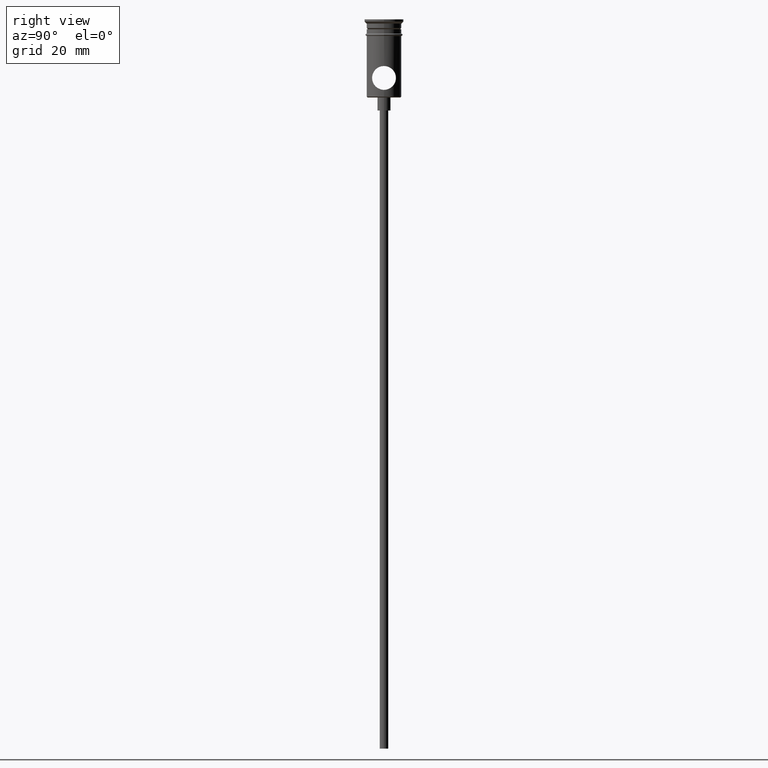
[diagram: clean part render]
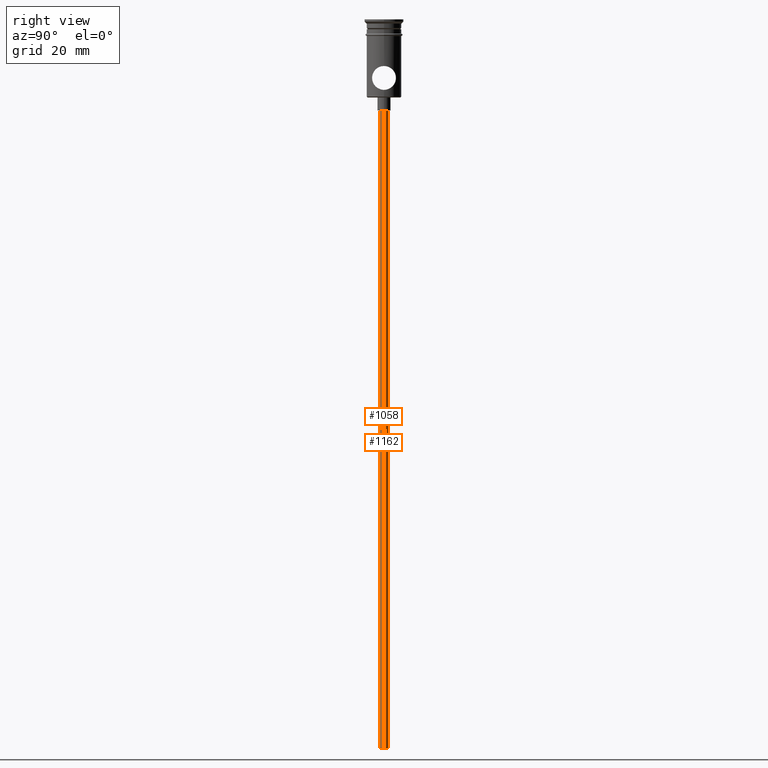
[diagram: same view with one multi-face feature highlighted, each face labeled with its STEP entity id]
A machine part, right view. The highlighted faces form ONE feature: a constant-radius fillet chain: 2 tangent blend faces with common blend radius 1 mm. The faces share edges in the B-rep.
Their STEP definitions:
[1] entity #1058 (Cylinder):
#17 = DIRECTION ( 'NONE',  ( 1.000000000000000000, 0.000000000000000000, 0.000000000000000000 ) ) ;
#46 = DIRECTION ( 'NONE',  ( -0.000000000000000000, -0.000000000000000000, 1.000000000000000000 ) ) ;
#111 = CARTESIAN_POINT ( 'NONE',  ( -0.9999999999999997780, 1.224646799147352961E-16, -167.9999999999999716 ) ) ;
#118 = FACE_OUTER_BOUND ( 'NONE', #1305, .T. ) ;
#150 = VERTEX_POINT ( 'NONE', #690 ) ;
#173 = ORIENTED_EDGE ( 'NONE', *, *, #829, .T. ) ;
#175 = VERTEX_POINT ( 'NONE', #851 ) ;
#268 = VERTEX_POINT ( 'NONE', #972 ) ;
#318 = EDGE_CURVE ( 'NONE', #175, #268, #828, .T. ) ;
#338 = CARTESIAN_POINT ( 'NONE',  ( 0.000000000000000000, 0.000000000000000000, -167.9999999999999716 ) ) ;
#355 = CARTESIAN_POINT ( 'NONE',  ( 0.000000000000000000, 0.000000000000000000, -20.99999999999999645 ) ) ;
#444 = DIRECTION ( 'NONE',  ( -0.000000000000000000, -0.000000000000000000, 1.000000000000000000 ) ) ;
#543 = CYLINDRICAL_SURFACE ( 'NONE', #658, 0.9999999999999997780 ) ;
#561 = DIRECTION ( 'NONE',  ( -1.000000000000000000, 0.000000000000000000, 0.000000000000000000 ) ) ;
#599 = CARTESIAN_POINT ( 'NONE',  ( 0.9999999999999997780, 0.000000000000000000, -167.9999999999999716 ) ) ;
#634 = CARTESIAN_POINT ( 'NONE',  ( 0.000000000000000000, 0.000000000000000000, -167.9999999999999716 ) ) ;
#650 = AXIS2_PLACEMENT_3D ( 'NONE', #355, #1235, #561 ) ;
#658 = AXIS2_PLACEMENT_3D ( 'NONE', #338, #444, #17 ) ;
#690 = CARTESIAN_POINT ( 'NONE',  ( -0.9999999999999997780, 1.224646799147352961E-16, -167.9999999999999716 ) ) ;
#746 = EDGE_CURVE ( 'NONE', #150, #1176, #780, .T. ) ;
#766 = CIRCLE ( 'NONE', #1041, 0.9999999999999997780 ) ;
#780 = LINE ( 'NONE', #111, #973 ) ;
#800 = CARTESIAN_POINT ( 'NONE',  ( -0.9999999999999997780, 1.224646799147352961E-16, -20.99999999999999645 ) ) ;
#810 = ORIENTED_EDGE ( 'NONE', *, *, #937, .F. ) ;
#828 = LINE ( 'NONE', #599, #1173 ) ;
#829 = EDGE_CURVE ( 'NONE', #268, #1176, #1131, .T. ) ;
#851 = CARTESIAN_POINT ( 'NONE',  ( 0.9999999999999997780, 0.000000000000000000, -167.9999999999999716 ) ) ;
#892 = ORIENTED_EDGE ( 'NONE', *, *, #746, .F. ) ;
#937 = EDGE_CURVE ( 'NONE', #175, #150, #766, .T. ) ;
#972 = CARTESIAN_POINT ( 'NONE',  ( 0.9999999999999997780, 0.000000000000000000, -20.99999999999999645 ) ) ;
#973 = VECTOR ( 'NONE', #1216, 1000.000000000000000 ) ;
#1041 = AXIS2_PLACEMENT_3D ( 'NONE', #634, #1049, #1072 ) ;
#1047 = ORIENTED_EDGE ( 'NONE', *, *, #318, .T. ) ;
#1049 = DIRECTION ( 'NONE',  ( 0.000000000000000000, 0.000000000000000000, -1.000000000000000000 ) ) ;
#1058 = ADVANCED_FACE ( 'NONE', ( #118 ), #543, .T. ) ;
#1072 = DIRECTION ( 'NONE',  ( -1.000000000000000000, 0.000000000000000000, 0.000000000000000000 ) ) ;
#1131 = CIRCLE ( 'NONE', #650, 0.9999999999999997780 ) ;
#1173 = VECTOR ( 'NONE', #46, 1000.000000000000000 ) ;
#1176 = VERTEX_POINT ( 'NONE', #800 ) ;
#1216 = DIRECTION ( 'NONE',  ( -0.000000000000000000, -0.000000000000000000, 1.000000000000000000 ) ) ;
#1235 = DIRECTION ( 'NONE',  ( 0.000000000000000000, 0.000000000000000000, -1.000000000000000000 ) ) ;
#1305 = EDGE_LOOP ( 'NONE', ( #892, #810, #1047, #173 ) ) ;
[2] entity #1162 (Cylinder):
#46 = DIRECTION ( 'NONE',  ( -0.000000000000000000, -0.000000000000000000, 1.000000000000000000 ) ) ;
#93 = CIRCLE ( 'NONE', #540, 0.9999999999999997780 ) ;
#111 = CARTESIAN_POINT ( 'NONE',  ( -0.9999999999999997780, 1.224646799147352961E-16, -167.9999999999999716 ) ) ;
#150 = VERTEX_POINT ( 'NONE', #690 ) ;
#153 = CARTESIAN_POINT ( 'NONE',  ( 0.000000000000000000, 0.000000000000000000, -20.99999999999999645 ) ) ;
#175 = VERTEX_POINT ( 'NONE', #851 ) ;
#241 = ORIENTED_EDGE ( 'NONE', *, *, #1403, .F. ) ;
#262 = AXIS2_PLACEMENT_3D ( 'NONE', #153, #265, #361 ) ;
#265 = DIRECTION ( 'NONE',  ( 0.000000000000000000, 0.000000000000000000, -1.000000000000000000 ) ) ;
#268 = VERTEX_POINT ( 'NONE', #972 ) ;
#318 = EDGE_CURVE ( 'NONE', #175, #268, #828, .T. ) ;
#361 = DIRECTION ( 'NONE',  ( -1.000000000000000000, 0.000000000000000000, 0.000000000000000000 ) ) ;
#379 = ORIENTED_EDGE ( 'NONE', *, *, #318, .F. ) ;
#454 = FACE_OUTER_BOUND ( 'NONE', #609, .T. ) ;
#495 = AXIS2_PLACEMENT_3D ( 'NONE', #1233, #698, #1135 ) ;
#505 = ORIENTED_EDGE ( 'NONE', *, *, #847, .T. ) ;
#528 = CARTESIAN_POINT ( 'NONE',  ( 0.000000000000000000, 0.000000000000000000, -167.9999999999999716 ) ) ;
#540 = AXIS2_PLACEMENT_3D ( 'NONE', #528, #661, #754 ) ;
#599 = CARTESIAN_POINT ( 'NONE',  ( 0.9999999999999997780, 0.000000000000000000, -167.9999999999999716 ) ) ;
#609 = EDGE_LOOP ( 'NONE', ( #241, #938, #505, #379 ) ) ;
#661 = DIRECTION ( 'NONE',  ( 0.000000000000000000, 0.000000000000000000, -1.000000000000000000 ) ) ;
#690 = CARTESIAN_POINT ( 'NONE',  ( -0.9999999999999997780, 1.224646799147352961E-16, -167.9999999999999716 ) ) ;
#698 = DIRECTION ( 'NONE',  ( -0.000000000000000000, -0.000000000000000000, 1.000000000000000000 ) ) ;
#746 = EDGE_CURVE ( 'NONE', #150, #1176, #780, .T. ) ;
#754 = DIRECTION ( 'NONE',  ( -1.000000000000000000, 0.000000000000000000, 0.000000000000000000 ) ) ;
#780 = LINE ( 'NONE', #111, #973 ) ;
#800 = CARTESIAN_POINT ( 'NONE',  ( -0.9999999999999997780, 1.224646799147352961E-16, -20.99999999999999645 ) ) ;
#828 = LINE ( 'NONE', #599, #1173 ) ;
#847 = EDGE_CURVE ( 'NONE', #1176, #268, #907, .T. ) ;
#851 = CARTESIAN_POINT ( 'NONE',  ( 0.9999999999999997780, 0.000000000000000000, -167.9999999999999716 ) ) ;
#907 = CIRCLE ( 'NONE', #262, 0.9999999999999997780 ) ;
#938 = ORIENTED_EDGE ( 'NONE', *, *, #746, .T. ) ;
#972 = CARTESIAN_POINT ( 'NONE',  ( 0.9999999999999997780, 0.000000000000000000, -20.99999999999999645 ) ) ;
#973 = VECTOR ( 'NONE', #1216, 1000.000000000000000 ) ;
#1135 = DIRECTION ( 'NONE',  ( 1.000000000000000000, 0.000000000000000000, 0.000000000000000000 ) ) ;
#1162 = ADVANCED_FACE ( 'NONE', ( #454 ), #1239, .T. ) ;
#1173 = VECTOR ( 'NONE', #46, 1000.000000000000000 ) ;
#1176 = VERTEX_POINT ( 'NONE', #800 ) ;
#1216 = DIRECTION ( 'NONE',  ( -0.000000000000000000, -0.000000000000000000, 1.000000000000000000 ) ) ;
#1233 = CARTESIAN_POINT ( 'NONE',  ( 0.000000000000000000, 0.000000000000000000, -167.9999999999999716 ) ) ;
#1239 = CYLINDRICAL_SURFACE ( 'NONE', #495, 0.9999999999999997780 ) ;
#1403 = EDGE_CURVE ( 'NONE', #150, #175, #93, .T. ) ;